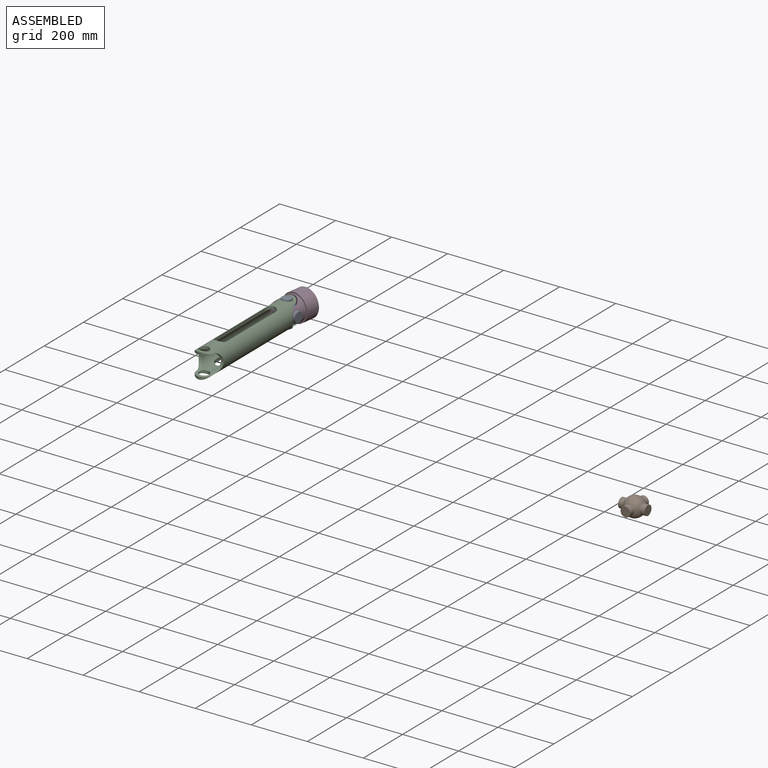
[diagram: assembled view]
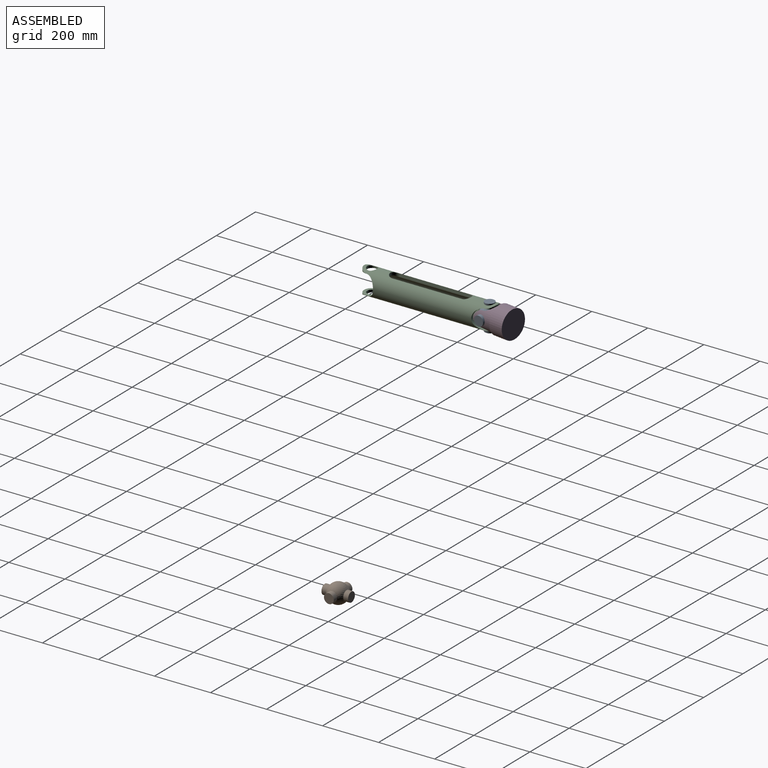
[diagram: assembled view, second angle]
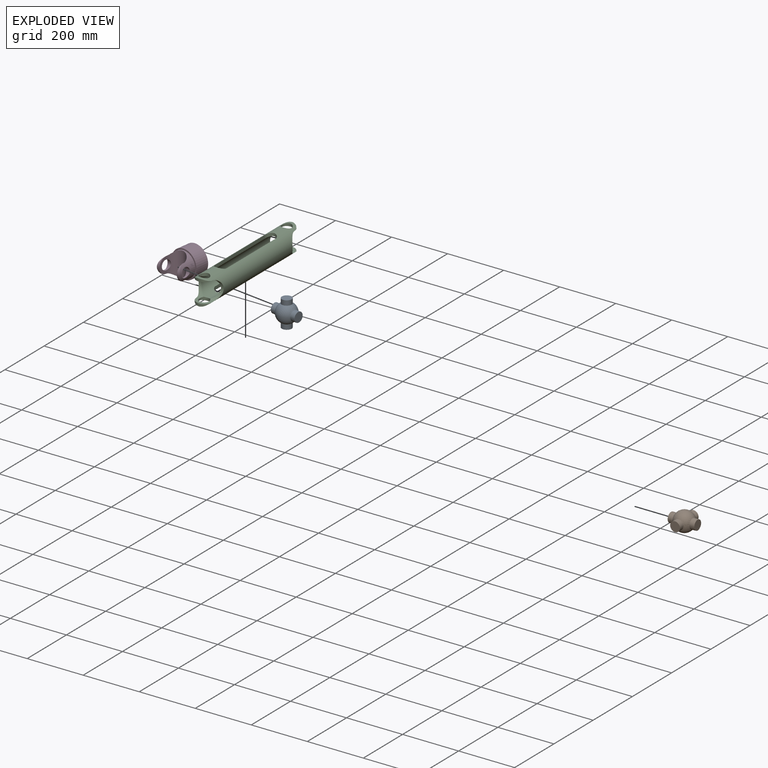
[diagram: exploded view]
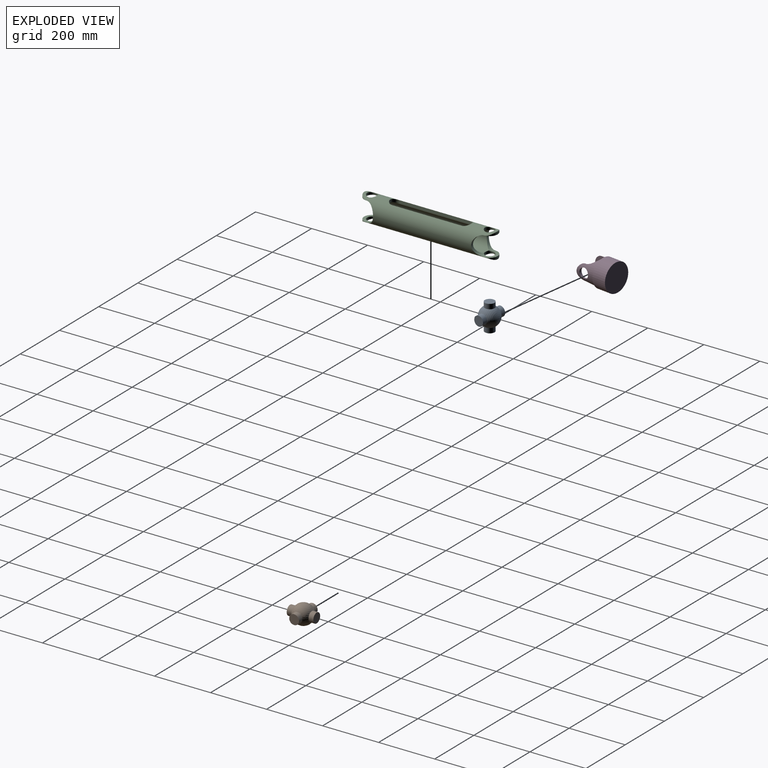
[diagram: exploded view, second angle]
ASSEMBLY  parts=4 mates=2
PART A: 9 faces, bbox 95x95x70 mm
  f0: sphere r=35mm, area 11269mm2, adj f1,f4,f6,f7
  f1: cylinder r=17.5mm len=35mm, axis (0,1,0), area 1890mm2, adj f0,f2
  f2: plane 35x35mm, normal (0,1,0), area 962.1mm2, adj f1
  f3: plane 35x35mm, normal (0,-1,0), area 962.1mm2, adj f4
  f4: cylinder r=17.5mm len=35mm, axis (0,1,0), area 1890mm2, adj f0,f3
  f5: plane 35x35mm, normal (1,0,0), area 962.1mm2, adj f6
  f6: cylinder r=17.5mm len=35mm, axis (-1,0,0), area 1890mm2, adj f0,f5
  f7: cylinder r=17.5mm len=35mm, axis (-1,0,0), area 1890mm2, adj f0,f8
  f8: plane 35x35mm, normal (-1,0,0), area 962.1mm2, adj f7
PART B: same geometry as A
PART C: 26 faces, bbox 90x476.6x90 mm
  f0: cylinder r=45mm len=476.57mm, axis (0,1,0), area 88359.1mm2, adj f2,f3,f6,f7,f8,f9,f10,f11
  f1: cylinder r=35mm len=395.25mm, axis (0,1,0), area 57669.8mm2, adj f2,f3,f6,f7,f8,f9,f10,f11
  f2: cylinder r=35mm len=70mm, axis (0,0,1), area 1388.1mm2, adj f0,f1,f20,f21,f22,f23
  f3: cylinder r=35mm len=70mm, axis (0,0,1), area 1388.1mm2, adj f0,f1,f20,f21,f22,f23
  f4: plane 56.57x28.28mm, normal (-1,0,0), area 775.6mm2, adj f14,f15,f17,f19
  f5: plane 56.57x28.28mm, normal (1,0,0), area 775.6mm2, adj f14,f15,f16,f18
  f6: plane 250x11.59mm, normal (0,0,1), area 2897.1mm2, adj f0,f1,f7,f9
  f7: cylinder r=20mm len=40mm, axis (-1,0,0), area 675.4mm2, adj f0,f1,f6,f8
  f8: plane 250x11.59mm, normal (0,0,-1), area 2897.1mm2, adj f0,f1,f7,f9
  f9: cylinder r=20mm len=40mm, axis (-1,0,0), area 675.4mm2, adj f0,f1,f6,f8
  f10: cylinder r=20mm len=40mm, axis (-1,0,0), area 675.4mm2, adj f0,f1,f11,f13
  f11: plane 250x11.59mm, normal (0,0,-1), area 2897.1mm2, adj f0,f1,f10,f12
  f12: cylinder r=20mm len=40mm, axis (-1,0,0), area 675.4mm2, adj f0,f1,f11,f13
  f13: plane 250x11.59mm, normal (0,0,1), area 2897.1mm2, adj f0,f1,f10,f12
  f14: cylinder r=35mm len=70mm, axis (0,0,1), area 1388.1mm2, adj f0,f1,f4,f5,f16,f17
  f15: cylinder r=35mm len=70mm, axis (0,0,1), area 1388.1mm2, adj f0,f1,f4,f5,f16,f17
  f16: cylinder r=17.5mm len=35mm, axis (1,0,0), area 951.1mm2, adj f0,f1,f5,f14,f15
  f17: cylinder r=17.5mm len=35mm, axis (1,0,0), area 951.9mm2, adj f0,f1,f4,f14,f15
  f18: cylinder r=28.28mm len=56.57mm, axis (1,0,0), area 458.2mm2, adj f0,f5
  f19: cylinder r=28.28mm len=56.57mm, axis (1,0,0), area 458.1mm2, adj f0,f4
  f20: plane 56.57x28.28mm, normal (-1,0,0), area 775.6mm2, adj f2,f3,f23,f25
  f21: plane 56.57x28.28mm, normal (1,0,0), area 775.6mm2, adj f2,f3,f22,f24
  f22: cylinder r=17.5mm len=35mm, axis (1,0,0), area 951.9mm2, adj f0,f1,f2,f3,f21
  f23: cylinder r=17.5mm len=35mm, axis (1,0,0), area 951.1mm2, adj f0,f1,f2,f3,f20
  f24: cylinder r=28.28mm len=56.57mm, axis (1,0,0), area 458.1mm2, adj f0,f21
  f25: cylinder r=28.28mm len=56.57mm, axis (1,0,0), area 458.2mm2, adj f0,f20
PART D: 11 faces, bbox 100x118.3x100 mm
  f0: cylinder r=45mm len=90mm, axis (0,-1,0), area 7768.4mm2, adj f4,f6,f7,f8,f9,f10
  f1: plane 56.57x28.28mm, normal (-1,0,0), area 775.6mm2, adj f6,f9,f10
  f2: plane 56.57x28.28mm, normal (1,0,0), area 775.6mm2, adj f6,f7,f8
  f3: cylinder r=50mm len=100mm, axis (0,-1,0), area 15708mm2, adj f4,f5
  f4: plane 100x100mm, normal (0,1,0), area 1492.3mm2, adj f0,f3
  f5: plane 100x100mm, normal (0,-1,0), area 7854mm2, adj f3
  f6: cylinder r=35mm len=90mm, axis (0,0,1), area 7167.4mm2, adj f0,f1,f2,f8,f10
  f7: cylinder r=28.28mm len=56.57mm, axis (1,0,0), area 458.2mm2, adj f0,f2
  f8: cylinder r=17.5mm len=35mm, axis (1,0,0), area 1033.1mm2, adj f0,f2,f6
  f9: cylinder r=28.28mm len=56.57mm, axis (1,0,0), area 458.1mm2, adj f0,f1
  f10: cylinder r=17.5mm len=35mm, axis (1,0,0), area 1033.8mm2, adj f0,f1,f6
PLACE A rot(axis=(-0.05,-0.71,0.71),174.4deg) t=(-365.87,-39.93,65)mm
PLACE B t=(721.86,180.84,-353.88)mm
PLACE C rot(axis=(0,-1,0),90deg) t=(-365.87,0.07,65)mm
PLACE D rot(axis=(0,0,1),172deg) t=(-358.17,49.87,65)mm
MATE revolute A.f1 <-> C.f16  axis (0,0,1) through (-365.87,-39.93,100)mm
MATE revolute A.f6 <-> D.f7  axis (-0.99,0.14,0) through (-400.53,-35.08,65)mm
